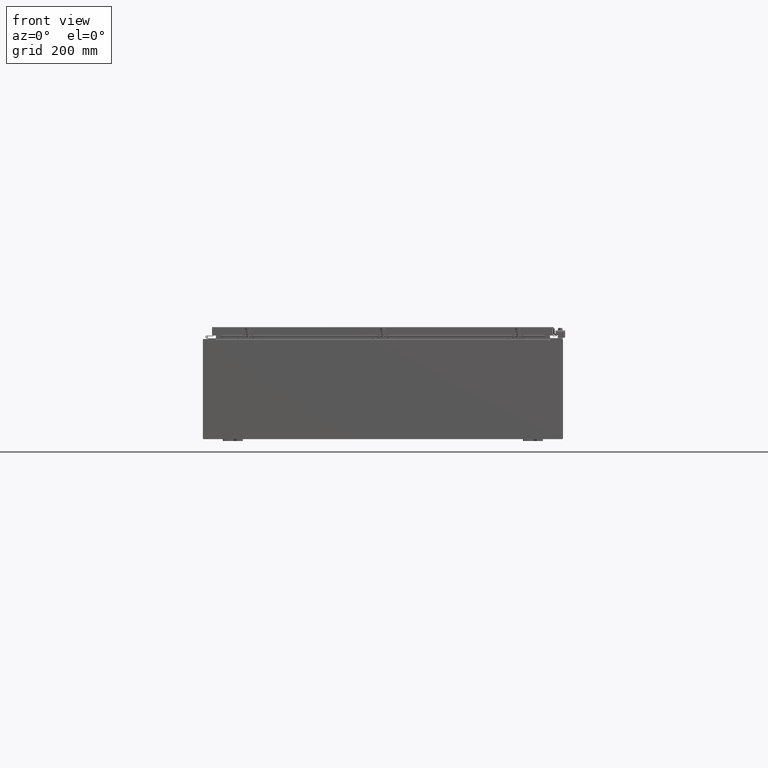
[diagram: clean part render]
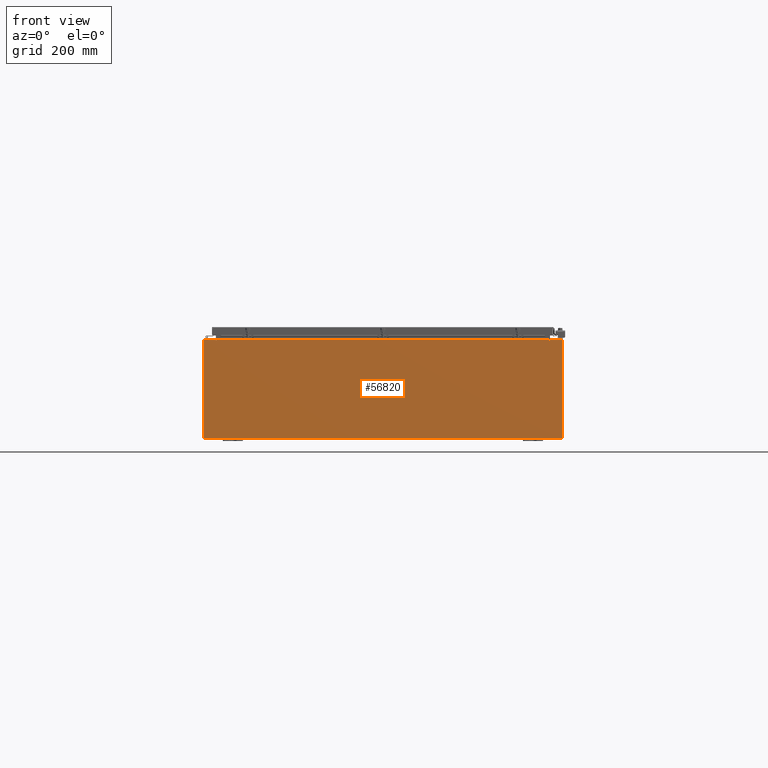
[diagram: same view with one face highlighted and labeled with its STEP entity id]
A machine part, front view. The second image highlights one B-rep face of the part: STEP entity #56820.
In plain terms, the highlighted planar face has unit normal (-0, 1, -0).
Its self-contained STEP definition (entity closure, byte-faithful):
#51 = VECTOR ( 'NONE', #62180, 39.37007874015748100 ) ;
#199 = EDGE_LOOP ( 'NONE', ( #58879, #28287, #46035, #50324, #37867, #54306, #52268, #26223, #18065, #8453, #32261, #32677 ) ) ;
#635 = AXIS2_PLACEMENT_3D ( 'NONE', #37332, #37225, #36918 ) ;
#1386 = CARTESIAN_POINT ( 'NONE',  ( 16.67454999999957700, -0.0000000000000000000, -1.447541957108341500E-012 ) ) ;
#1529 = LINE ( 'NONE', #2877, #51762 ) ;
#2877 = CARTESIAN_POINT ( 'NONE',  ( -16.67455000000000000, -0.0000000000000000000, 0.0000000000000000000 ) ) ;
#2955 = EDGE_CURVE ( 'NONE', #26873, #59278, #54997, .T. ) ;
#3578 = VERTEX_POINT ( 'NONE', #25955 ) ;
#4110 = VERTEX_POINT ( 'NONE', #16416 ) ;
#4191 = DIRECTION ( 'NONE',  ( 0.0000000000000000000, 0.0000000000000000000, -1.000000000000000000 ) ) ;
#4987 = VERTEX_POINT ( 'NONE', #23783 ) ;
#5195 = CARTESIAN_POINT ( 'NONE',  ( -16.67455000000000000, 0.0000000000000000000, 4.925300000000000000 ) ) ;
#6791 = VECTOR ( 'NONE', #12762, 39.37007874015748100 ) ;
#7977 = EDGE_CURVE ( 'NONE', #59278, #22593, #59627, .T. ) ;
#8453 = ORIENTED_EDGE ( 'NONE', *, *, #59710, .T. ) ;
#8914 = EDGE_CURVE ( 'NONE', #18716, #26873, #9251, .T. ) ;
#9044 = CARTESIAN_POINT ( 'NONE',  ( 17.92530000000000000, 0.0000000000000000000, 4.925300000000000000 ) ) ;
#9251 = LINE ( 'NONE', #1386, #20718 ) ;
#11386 = DIRECTION ( 'NONE',  ( 0.0000000000000000000, -0.0000000000000000000, -1.000000000000000000 ) ) ;
#12762 = DIRECTION ( 'NONE',  ( 0.0000000000000000000, 0.0000000000000000000, -1.000000000000000000 ) ) ;
#14448 = LINE ( 'NONE', #36475, #25880 ) ;
#14919 = LINE ( 'NONE', #49084, #50663 ) ;
#16416 = CARTESIAN_POINT ( 'NONE',  ( -16.67455000000000000, 0.0000000000000000000, 4.874950000000000100 ) ) ;
#18065 = ORIENTED_EDGE ( 'NONE', *, *, #21514, .T. ) ;
#18494 = CARTESIAN_POINT ( 'NONE',  ( -16.65587500000000200, 0.0000000000000000000, 4.874950000000000100 ) ) ;
#18716 = VERTEX_POINT ( 'NONE', #51185 ) ;
#20718 = VECTOR ( 'NONE', #56700, 39.37007874015748100 ) ;
#21116 = VERTEX_POINT ( 'NONE', #49526 ) ;
#21321 = LINE ( 'NONE', #9044, #45639 ) ;
#21514 = EDGE_CURVE ( 'NONE', #3578, #4987, #21321, .T. ) ;
#22032 = CARTESIAN_POINT ( 'NONE',  ( -17.92530000000000000, 0.0000000000000000000, 4.925300000000000000 ) ) ;
#22593 = VERTEX_POINT ( 'NONE', #28954 ) ;
#23422 = DIRECTION ( 'NONE',  ( 0.0000000000000000000, 0.0000000000000000000, -1.000000000000000000 ) ) ;
#23783 = CARTESIAN_POINT ( 'NONE',  ( 17.92530000000000000, 0.0000000000000000000, -4.925300000000000000 ) ) ;
#24611 = DIRECTION ( 'NONE',  ( 0.0000000000000000000, 0.0000000000000000000, 1.000000000000000000 ) ) ;
#24655 = EDGE_CURVE ( 'NONE', #59256, #4110, #40809, .T. ) ;
#24787 = CARTESIAN_POINT ( 'NONE',  ( 16.63720000000000400, 0.0000000000000000000, 0.0000000000000000000 ) ) ;
#25072 = CARTESIAN_POINT ( 'NONE',  ( 16.67455000000000000, 0.0000000000000000000, 4.874950000000000100 ) ) ;
#25880 = VECTOR ( 'NONE', #60913, 39.37007874015748100 ) ;
#25955 = CARTESIAN_POINT ( 'NONE',  ( 17.92530000000000000, 0.0000000000000000000, 4.925300000000000000 ) ) ;
#26223 = ORIENTED_EDGE ( 'NONE', *, *, #50396, .T. ) ;
#26873 = VERTEX_POINT ( 'NONE', #25072 ) ;
#27485 = CARTESIAN_POINT ( 'NONE',  ( -16.63720000000000400, -0.0000000000000000000, 0.0000000000000000000 ) ) ;
#28192 = CARTESIAN_POINT ( 'NONE',  ( -17.92530000000000000, 0.0000000000000000000, 4.925300000000000000 ) ) ;
#28287 = ORIENTED_EDGE ( 'NONE', *, *, #24655, .F. ) ;
#28954 = CARTESIAN_POINT ( 'NONE',  ( 16.63720000000000400, 0.0000000000000000000, 4.912300000000000100 ) ) ;
#30436 = CARTESIAN_POINT ( 'NONE',  ( -17.92530000000000000, 0.0000000000000000000, 4.925300000000000000 ) ) ;
#30800 = PLANE ( 'NONE',  #32309 ) ;
#31266 = CARTESIAN_POINT ( 'NONE',  ( 16.63720000000000400, 0.0000000000000000000, 4.874950000000000100 ) ) ;
#32261 = ORIENTED_EDGE ( 'NONE', *, *, #59157, .T. ) ;
#32309 = AXIS2_PLACEMENT_3D ( 'NONE', #35676, #40568, #11386 ) ;
#32677 = ORIENTED_EDGE ( 'NONE', *, *, #33445, .T. ) ;
#32742 = VERTEX_POINT ( 'NONE', #47435 ) ;
#33445 = EDGE_CURVE ( 'NONE', #32742, #46365, #48768, .T. ) ;
#33990 = EDGE_CURVE ( 'NONE', #49697, #59256, #45641, .T. ) ;
#35328 = DIRECTION ( 'NONE',  ( -0.0000000000000000000, -0.0000000000000000000, 1.000000000000000000 ) ) ;
#35676 = CARTESIAN_POINT ( 'NONE',  ( 0.0000000000000000000, 0.0000000000000000000, 0.0000000000000000000 ) ) ;
#35864 = DIRECTION ( 'NONE',  ( 0.0000000000000000000, 0.0000000000000000000, 1.000000000000000000 ) ) ;
#36168 = CARTESIAN_POINT ( 'NONE',  ( -16.63720000000000400, -0.0000000000000000000, 4.874950000000000100 ) ) ;
#36475 = CARTESIAN_POINT ( 'NONE',  ( -16.63720000000000400, -7.171100983368691200E-016, 4.912300000000000100 ) ) ;
#36918 = DIRECTION ( 'NONE',  ( 0.0000000000000000000, 0.0000000000000000000, -1.000000000000000000 ) ) ;
#37078 = EDGE_CURVE ( 'NONE', #49697, #22593, #14448, .T. ) ;
#37225 = DIRECTION ( 'NONE',  ( -0.0000000000000000000, 1.000000000000000000, -0.0000000000000000000 ) ) ;
#37332 = CARTESIAN_POINT ( 'NONE',  ( 16.65587500000000200, 0.0000000000000000000, 4.874950000000000100 ) ) ;
#37412 = VECTOR ( 'NONE', #51145, 39.37007874015748100 ) ;
#37867 = ORIENTED_EDGE ( 'NONE', *, *, #7977, .F. ) ;
#39497 = DIRECTION ( 'NONE',  ( -1.000000000000000000, -0.0000000000000000000, -0.0000000000000000000 ) ) ;
#39968 = CARTESIAN_POINT ( 'NONE',  ( -16.63720000000000400, -7.171100983368691200E-016, 4.912300000000000100 ) ) ;
#40472 = FACE_OUTER_BOUND ( 'NONE', #199, .T. ) ;
#40568 = DIRECTION ( 'NONE',  ( 0.0000000000000000000, -1.000000000000000000, 0.0000000000000000000 ) ) ;
#40809 = CIRCLE ( 'NONE', #48633, 0.01867499999999949400 ) ;
#44320 = EDGE_CURVE ( 'NONE', #4110, #46365, #1529, .T. ) ;
#45153 = VECTOR ( 'NONE', #24611, 39.37007874015748100 ) ;
#45639 = VECTOR ( 'NONE', #4191, 39.37007874015748100 ) ;
#45641 = LINE ( 'NONE', #27485, #6791 ) ;
#46035 = ORIENTED_EDGE ( 'NONE', *, *, #33990, .F. ) ;
#46365 = VERTEX_POINT ( 'NONE', #5195 ) ;
#47435 = CARTESIAN_POINT ( 'NONE',  ( -17.92530000000000000, 0.0000000000000000000, 4.925300000000000000 ) ) ;
#48633 = AXIS2_PLACEMENT_3D ( 'NONE', #18494, #52502, #23422 ) ;
#48768 = LINE ( 'NONE', #28192, #51 ) ;
#49084 = CARTESIAN_POINT ( 'NONE',  ( -17.92530000000000000, 0.0000000000000000000, -4.925300000000000000 ) ) ;
#49526 = CARTESIAN_POINT ( 'NONE',  ( -17.92530000000000000, 0.0000000000000000000, -4.925300000000000000 ) ) ;
#49697 = VERTEX_POINT ( 'NONE', #39968 ) ;
#50320 = LINE ( 'NONE', #22032, #37412 ) ;
#50324 = ORIENTED_EDGE ( 'NONE', *, *, #37078, .T. ) ;
#50396 = EDGE_CURVE ( 'NONE', #18716, #3578, #50320, .T. ) ;
#50663 = VECTOR ( 'NONE', #39497, 39.37007874015748100 ) ;
#51145 = DIRECTION ( 'NONE',  ( 1.000000000000000000, 0.0000000000000000000, 0.0000000000000000000 ) ) ;
#51185 = CARTESIAN_POINT ( 'NONE',  ( 16.67455000000000700, 0.0000000000000000000, 4.925300000000000000 ) ) ;
#51762 = VECTOR ( 'NONE', #35864, 39.37007874015748100 ) ;
#52268 = ORIENTED_EDGE ( 'NONE', *, *, #8914, .F. ) ;
#52502 = DIRECTION ( 'NONE',  ( -0.0000000000000000000, 1.000000000000000000, -0.0000000000000000000 ) ) ;
#54306 = ORIENTED_EDGE ( 'NONE', *, *, #2955, .F. ) ;
#54997 = CIRCLE ( 'NONE', #635, 0.01867499999999949400 ) ;
#56700 = DIRECTION ( 'NONE',  ( -8.681145560800009800E-014, 0.0000000000000000000, -1.000000000000000000 ) ) ;
#56820 = ADVANCED_FACE ( 'NONE', ( #40472 ), #30800, .F. ) ;
#56867 = VECTOR ( 'NONE', #35328, 39.37007874015748100 ) ;
#58383 = LINE ( 'NONE', #30436, #56867 ) ;
#58879 = ORIENTED_EDGE ( 'NONE', *, *, #44320, .F. ) ;
#59157 = EDGE_CURVE ( 'NONE', #21116, #32742, #58383, .T. ) ;
#59256 = VERTEX_POINT ( 'NONE', #36168 ) ;
#59278 = VERTEX_POINT ( 'NONE', #31266 ) ;
#59627 = LINE ( 'NONE', #24787, #45153 ) ;
#59710 = EDGE_CURVE ( 'NONE', #4987, #21116, #14919, .T. ) ;
#60913 = DIRECTION ( 'NONE',  ( 1.000000000000000000, 0.0000000000000000000, 0.0000000000000000000 ) ) ;
#62180 = DIRECTION ( 'NONE',  ( 1.000000000000000000, 0.0000000000000000000, 0.0000000000000000000 ) ) ;